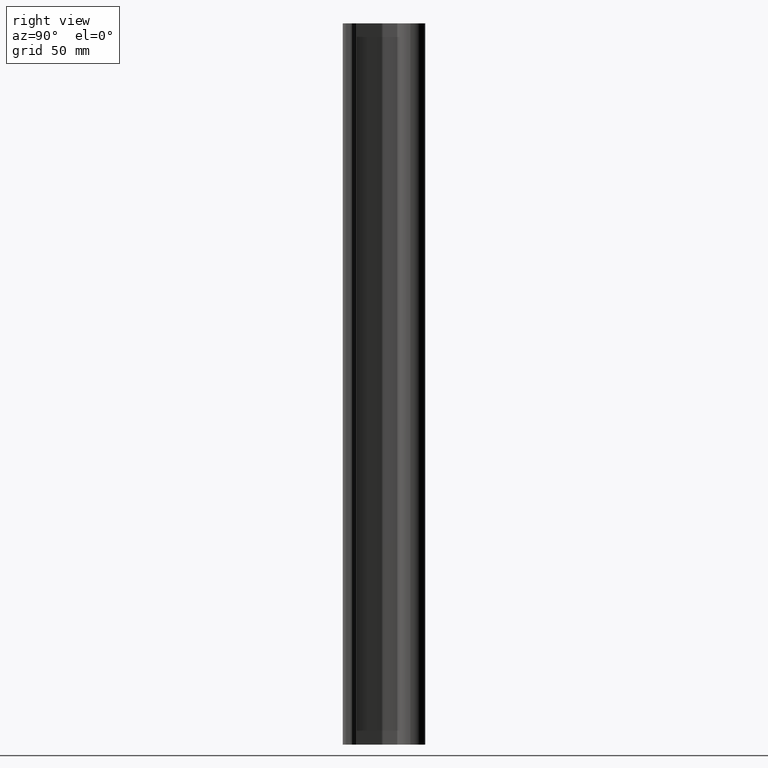
[diagram: clean part render]
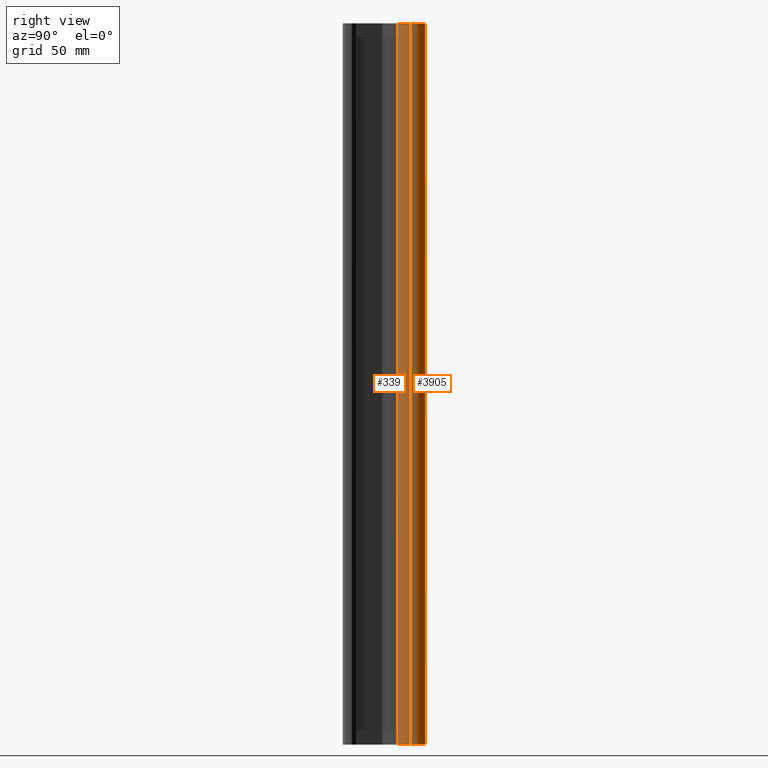
[diagram: same view with one multi-face feature highlighted, each face labeled with its STEP entity id]
A machine part, right view. The highlighted faces form ONE feature: a constant-radius fillet chain: 2 tangent blend faces with common blend radius 6.35 mm. The faces share edges in the B-rep.
Their STEP definitions:
[1] entity #3905 (Cylinder):
#411 = EDGE_CURVE ( 'NONE', #3947, #7577, #4960, .T. ) ;
#538 = CIRCLE ( 'NONE', #1554, 0.2500000000000001110 ) ;
#642 = ORIENTED_EDGE ( 'NONE', *, *, #411, .T. ) ;
#686 = CIRCLE ( 'NONE', #5574, 0.2500000000000001110 ) ;
#812 = VECTOR ( 'NONE', #7142, 39.37007874015748143 ) ;
#1169 = CARTESIAN_POINT ( 'NONE',  ( 0.2500000000000001110, 1.125000000000000222, -11.99999999999999822 ) ) ;
#1548 = EDGE_LOOP ( 'NONE', ( #2937, #642, #6297, #6998 ) ) ;
#1554 = AXIS2_PLACEMENT_3D ( 'NONE', #4876, #2490, #7236 ) ;
#1662 = AXIS2_PLACEMENT_3D ( 'NONE', #1917, #2980, #1884 ) ;
#1884 = DIRECTION ( 'NONE',  ( 1.000000000000000000, 0.000000000000000000, 0.000000000000000000 ) ) ;
#1917 = CARTESIAN_POINT ( 'NONE',  ( 0.000000000000000000, 1.125000000000000222, -11.99999999999999822 ) ) ;
#2040 = CARTESIAN_POINT ( 'NONE',  ( -0.2500000000000001110, 1.125000000000000222, -11.99999999999999822 ) ) ;
#2490 = DIRECTION ( 'NONE',  ( 0.000000000000000000, 0.000000000000000000, 1.000000000000000000 ) ) ;
#2882 = CARTESIAN_POINT ( 'NONE',  ( 0.2500000000000001110, 1.125000000000000222, -11.99999999999999822 ) ) ;
#2937 = ORIENTED_EDGE ( 'NONE', *, *, #4316, .T. ) ;
#2980 = DIRECTION ( 'NONE',  ( 0.000000000000000000, 0.000000000000000000, 1.000000000000000000 ) ) ;
#3166 = CARTESIAN_POINT ( 'NONE',  ( -0.2500000000000001110, 1.125000000000000222, -11.99999999999999822 ) ) ;
#3409 = CYLINDRICAL_SURFACE ( 'NONE', #1662, 0.2500000000000001110 ) ;
#3491 = FACE_OUTER_BOUND ( 'NONE', #1548, .T. ) ;
#3534 = EDGE_CURVE ( 'NONE', #3554, #7577, #686, .T. ) ;
#3544 = CARTESIAN_POINT ( 'NONE',  ( -0.2500000000000001110, 1.125000000000000222, 0.000000000000000000 ) ) ;
#3554 = VERTEX_POINT ( 'NONE', #4944 ) ;
#3905 = ADVANCED_FACE ( 'NONE', ( #3491 ), #3409, .T. ) ;
#3947 = VERTEX_POINT ( 'NONE', #2040 ) ;
#4037 = DIRECTION ( 'NONE',  ( 0.000000000000000000, 0.000000000000000000, 1.000000000000000000 ) ) ;
#4275 = VERTEX_POINT ( 'NONE', #2882 ) ;
#4316 = EDGE_CURVE ( 'NONE', #4275, #3947, #538, .T. ) ;
#4590 = VECTOR ( 'NONE', #4806, 39.37007874015748143 ) ;
#4641 = CARTESIAN_POINT ( 'NONE',  ( 0.000000000000000000, 1.125000000000000222, 0.000000000000000000 ) ) ;
#4806 = DIRECTION ( 'NONE',  ( 0.000000000000000000, 0.000000000000000000, 1.000000000000000000 ) ) ;
#4876 = CARTESIAN_POINT ( 'NONE',  ( 0.000000000000000000, 1.125000000000000222, -11.99999999999999822 ) ) ;
#4882 = EDGE_CURVE ( 'NONE', #4275, #3554, #7605, .T. ) ;
#4944 = CARTESIAN_POINT ( 'NONE',  ( 0.2500000000000001110, 1.125000000000000222, 0.000000000000000000 ) ) ;
#4960 = LINE ( 'NONE', #3166, #4590 ) ;
#5574 = AXIS2_PLACEMENT_3D ( 'NONE', #4641, #4037, #6423 ) ;
#6297 = ORIENTED_EDGE ( 'NONE', *, *, #3534, .F. ) ;
#6423 = DIRECTION ( 'NONE',  ( 1.000000000000000000, 0.000000000000000000, 0.000000000000000000 ) ) ;
#6998 = ORIENTED_EDGE ( 'NONE', *, *, #4882, .F. ) ;
#7142 = DIRECTION ( 'NONE',  ( 0.000000000000000000, 0.000000000000000000, 1.000000000000000000 ) ) ;
#7236 = DIRECTION ( 'NONE',  ( 1.000000000000000000, 0.000000000000000000, 0.000000000000000000 ) ) ;
#7577 = VERTEX_POINT ( 'NONE', #3544 ) ;
#7605 = LINE ( 'NONE', #1169, #812 ) ;
[2] entity #339 (Cylinder):
#2 = CARTESIAN_POINT ( 'NONE',  ( -0.07800240562820986989, 0.8874802645617220209, -1.994912855319884493 ) ) ;
#93 = B_SPLINE_CURVE_WITH_KNOTS ( 'NONE', 3,
 ( #2788, #7035, #5769, #2278, #4659, #5152, #2194, #4583, #472, #3401, #2312, #6379, #6993, #1584, #1019, #1056, #3436, #986, #5810, #1656, #425, #2855, #4695, #5234, #4057, #6448, #4174, #5500, #6777, #1398 ),
 .UNSPECIFIED., .F., .F.,
 ( 4, 2, 2, 2, 2, 2, 2, 2, 2, 2, 2, 2, 2, 2, 4 ),
 ( 7.965605694664002201E-18, 0.0003895807297420045019, 0.0007791614594840008722, 0.001168742189225997459, 0.001558322918967993721, 0.002337484378451929867, 0.002727065108193936320, 0.003116645837935943641, 0.003506226567677950094, 0.003895807297419957415, 0.004674968756903969888, 0.005064549486646006266, 0.005454130216388042643, 0.005843710946130079020, 0.006233291675872114530 ),
 .UNSPECIFIED. ) ;
#120 = CARTESIAN_POINT ( 'NONE',  ( -0.04762844379137524953, 0.8795413277969731380, -2.061979185233456136 ) ) ;
#223 = ORIENTED_EDGE ( 'NONE', *, *, #7689, .T. ) ;
#289 = CARTESIAN_POINT ( 'NONE',  ( 0.07749688441172671027, 0.8873125097882689216, -10.01022446488824613 ) ) ;
#334 = CARTESIAN_POINT ( 'NONE',  ( 0.05155376896670634673, 0.8803454926763309984, -9.941245252950563938 ) ) ;
#339 = ADVANCED_FACE ( 'NONE', ( #7031, #505, #2309, #2929 ), #1623, .T. ) ;
#363 = B_SPLINE_CURVE_WITH_KNOTS ( 'NONE', 3,
 ( #7523, #2155, #4535, #4571, #6364, #6945, #2659, #6318, #3354, #3394, #534, #1085, #7713, #2221, #4762, #2890, #2922, #2269, #7061, #3424, #7167, #3512, #1043, #1646, #457, #1737, #4167, #5291, #2391, #5883 ),
 .UNSPECIFIED., .F., .F.,
 ( 4, 2, 2, 2, 2, 2, 2, 2, 2, 2, 2, 2, 2, 2, 4 ),
 ( 9.346427983603432115E-18, 0.0003895807297418959732, 0.0007791614594837826223, 0.001168742189225668946, 0.001558322918967555270, 0.002337484378451445879, 0.002727065108193467511, 0.003116645837935489143, 0.003506226567677510342, 0.003895807297419531974, 0.004674968756903726159, 0.005064549486645823252, 0.005454130216387922080, 0.005843710946130019172, 0.006233291675872117132 ),
 .UNSPECIFIED. ) ;
#365 = CARTESIAN_POINT ( 'NONE',  ( 0.07800005346680394247, 0.8874794921292504801, -2.005139616885248888 ) ) ;
#367 = ORIENTED_EDGE ( 'NONE', *, *, #4882, .T. ) ;
#397 = CARTESIAN_POINT ( 'NONE',  ( 0.07749688441172668252, 0.8873125097882689216, -2.010224464888246132 ) ) ;
#407 = CARTESIAN_POINT ( 'NONE',  ( 0.03471035892563541225, 0.8773759459724902454, -10.07003710488676163 ) ) ;
#411 = EDGE_CURVE ( 'NONE', #3947, #7577, #4960, .T. ) ;
#425 = CARTESIAN_POINT ( 'NONE',  ( -0.06232975070472959733, 0.8827823061085767753, -5.952016090841690144 ) ) ;
#457 = CARTESIAN_POINT ( 'NONE',  ( -0.03463712429092666301, 0.8773658347640002075, -9.929927362662187562 ) ) ;
#472 = CARTESIAN_POINT ( 'NONE',  ( -0.05160429883667163459, 0.8803565653948270953, -6.058707218946969952 ) ) ;
#483 = CARTESIAN_POINT ( 'NONE',  ( 0.06235218895622875179, 0.8827879426489954051, -1.952043247457424080 ) ) ;
#490 = CARTESIAN_POINT ( 'NONE',  ( 0.02529603958555006610, 0.8762378816398044279, -6.073960228900073588 ) ) ;
#505 = FACE_BOUND ( 'NONE', #2439, .T. ) ;
#514 = VERTEX_POINT ( 'NONE', #7712 ) ;
#517 = CARTESIAN_POINT ( 'NONE',  ( 0.02054169543680450447, 0.8756652858451183796, -1.924067077359322031 ) ) ;
#534 = CARTESIAN_POINT ( 'NONE',  ( -0.06811565724640089581, 0.8844239444435320063, -10.03933565764928382 ) ) ;
#565 = CARTESIAN_POINT ( 'NONE',  ( 0.02031614091366462649, 0.8757762236181687587, -6.075481140110469802 ) ) ;
#582 = DIRECTION ( 'NONE',  ( 1.000000000000000000, 0.000000000000000000, 0.000000000000000000 ) ) ;
#663 = DIRECTION ( 'NONE',  ( 1.000000000000000000, 0.000000000000000000, 0.000000000000000000 ) ) ;
#690 = CARTESIAN_POINT ( 'NONE',  ( -0.02029898634861083268, 0.8757749623111573678, -2.075485279794390792 ) ) ;
#812 = VECTOR ( 'NONE', #7142, 39.37007874015748143 ) ;
#854 = CARTESIAN_POINT ( 'NONE',  ( -3.789845740549149170E-16, 0.8750000000000001110, -10.07800000000000118 ) ) ;
#886 = CARTESIAN_POINT ( 'NONE',  ( 0.07549072539660250936, 0.8866677519181025424, -10.02028440669258558 ) ) ;
#905 = VERTEX_POINT ( 'NONE', #2581 ) ;
#917 = CARTESIAN_POINT ( 'NONE',  ( 0.02031614091366380423, 0.8757762236181686477, -10.07548114011046891 ) ) ;
#950 = CARTESIAN_POINT ( 'NONE',  ( 0.07549072539660242609, 0.8866677519181028755, -2.020284406692587353 ) ) ;
#986 = CARTESIAN_POINT ( 'NONE',  ( -0.07547898097189705002, 0.8866640281602997664, -5.979675374726825865 ) ) ;
#1000 = CARTESIAN_POINT ( 'NONE',  ( 0.07748070542580053066, 0.8873072381692586053, -9.989668034478798475 ) ) ;
#1019 = CARTESIAN_POINT ( 'NONE',  ( -0.07799757705483373327, 0.8874786788938041626, -6.005160649025024000 ) ) ;
#1043 = CARTESIAN_POINT ( 'NONE',  ( -0.04763339262048741501, 0.8795425248909997107, -9.938025862120726472 ) ) ;
#1056 = CARTESIAN_POINT ( 'NONE',  ( -0.07800240562820985601, 0.8874802645617221319, -5.994912855319885381 ) ) ;
#1085 = CARTESIAN_POINT ( 'NONE',  ( -0.07396476811180419109, 0.8861834210205001838, -10.02527790061238022 ) ) ;
#1106 = ORIENTED_EDGE ( 'NONE', *, *, #3876, .T. ) ;
#1148 = CARTESIAN_POINT ( 'NONE',  ( -0.05160429883667128070, 0.8803565653948266512, -2.058707218946969952 ) ) ;
#1169 = CARTESIAN_POINT ( 'NONE',  ( 0.2500000000000001110, 1.125000000000000222, -11.99999999999999822 ) ) ;
#1190 = CARTESIAN_POINT ( 'NONE',  ( -0.06232975070473011081, 0.8827823061085769973, -1.952016090841690144 ) ) ;
#1191 = CARTESIAN_POINT ( 'NONE',  ( 0.06231953888075507375, 0.8827811517732780944, -6.047984401630650098 ) ) ;
#1227 = B_SPLINE_CURVE_WITH_KNOTS ( 'NONE', 3,
 ( #6837, #5055, #517, #2288, #1634, #1596, #7110, #483, #5311, #7700, #1666, #4028, #4064, #365, #397, #950, #2867, #2830, #4109, #5279, #1762, #6416, #5159, #6343, #7669, #3379, #4667, #7574 ),
 .UNSPECIFIED., .F., .F.,
 ( 4, 2, 2, 2, 2, 2, 2, 2, 2, 2, 2, 2, 2, 4 ),
 ( 0.006233291675872123204, 0.007012246077378775887, 0.007401723278132102228, 0.007791200478885428569, 0.008570154880392068242, 0.008959632081145396318, 0.009349109281898724394, 0.009738586482652054205, 0.01012806368340538228, 0.01090701808491203843, 0.01129649528566537345, 0.01168597248641870673, 0.01207544968717204348, 0.01246492688792537676 ),
 .UNSPECIFIED. ) ;
#1236 = CARTESIAN_POINT ( 'NONE',  ( -0.07799757705483373327, 0.8874786788938041626, -2.005160649025025332 ) ) ;
#1368 = DIRECTION ( 'NONE',  ( 0.000000000000000000, 0.000000000000000000, 1.000000000000000000 ) ) ;
#1374 = DIRECTION ( 'NONE',  ( 0.000000000000000000, 0.000000000000000000, 1.000000000000000000 ) ) ;
#1398 = CARTESIAN_POINT ( 'NONE',  ( 2.213917706696656308E-15, 0.8750000000000001110, -5.921999999999999709 ) ) ;
#1525 = CARTESIAN_POINT ( 'NONE',  ( 0.03921498086539857569, 0.8780576707971254891, -9.932383816771762852 ) ) ;
#1555 = EDGE_CURVE ( 'NONE', #7577, #3554, #1996, .T. ) ;
#1563 = CARTESIAN_POINT ( 'NONE',  ( 2.213917706696159326E-15, 0.8750000000000001110, -9.922000000000000597 ) ) ;
#1584 = CARTESIAN_POINT ( 'NONE',  ( -0.07749518699012490630, 0.8873119349522807786, -6.010243777974426216 ) ) ;
#1596 = CARTESIAN_POINT ( 'NONE',  ( 0.04764718445361500188, 0.8795451681264805366, -1.938036230164141616 ) ) ;
#1601 = DIRECTION ( 'NONE',  ( 1.000000000000000000, 0.000000000000000000, 0.000000000000000000 ) ) ;
#1609 = CARTESIAN_POINT ( 'NONE',  ( 0.01022138879153923832, 0.8750000000000001110, -9.922000000000000597 ) ) ;
#1623 = CYLINDRICAL_SURFACE ( 'NONE', #4209, 0.2500000000000001110 ) ;
#1634 = CARTESIAN_POINT ( 'NONE',  ( 0.03921498086539830508, 0.8780576707971252670, -1.932383816771763296 ) ) ;
#1646 = CARTESIAN_POINT ( 'NONE',  ( -0.03920491261322269633, 0.8780561055494339184, -9.932378193713816472 ) ) ;
#1656 = CARTESIAN_POINT ( 'NONE',  ( -0.06807901061803971199, 0.8844127860630973670, -5.960569573522794151 ) ) ;
#1666 = CARTESIAN_POINT ( 'NONE',  ( 0.07547573047490928333, 0.8866630057056101855, -1.979667185780374483 ) ) ;
#1737 = CARTESIAN_POINT ( 'NONE',  ( -0.02523737676779013242, 0.8762320660029588870, -9.926020410270783856 ) ) ;
#1762 = CARTESIAN_POINT ( 'NONE',  ( 0.04761907601107875920, 0.8795395870466513610, -2.061985935504922818 ) ) ;
#1770 = CARTESIAN_POINT ( 'NONE',  ( 0.06811335514283047010, 0.8844231649958608221, -6.039345509958289782 ) ) ;
#1771 = CARTESIAN_POINT ( 'NONE',  ( 0.03921498086539836059, 0.8780576707971257111, -5.932383816771763740 ) ) ;
#1805 = CARTESIAN_POINT ( 'NONE',  ( -0.07547898097189695288, 0.8866640281602998774, -1.979675374726825199 ) ) ;
#1808 = CARTESIAN_POINT ( 'NONE',  ( 0.01022138879153917934, 0.8750000000000000000, -5.921999999999999709 ) ) ;
#1846 = CARTESIAN_POINT ( 'NONE',  ( -0.03463712429092701689, 0.8773658347640002075, -1.929927362662186008 ) ) ;
#1996 = CIRCLE ( 'NONE', #5609, 0.2500000000000001110 ) ;
#2015 = CARTESIAN_POINT ( 'NONE',  ( 2.213917706696159326E-15, 0.8750000000000001110, -9.922000000000000597 ) ) ;
#2040 = CARTESIAN_POINT ( 'NONE',  ( -0.2500000000000001110, 1.125000000000000222, -11.99999999999999822 ) ) ;
#2155 = CARTESIAN_POINT ( 'NONE',  ( -0.005188565316905644105, 0.8750000000000001110, -10.07800000000000473 ) ) ;
#2194 = CARTESIAN_POINT ( 'NONE',  ( -0.03917314466049437449, 0.8780508288026275254, -6.067641354196963377 ) ) ;
#2200 = CIRCLE ( 'NONE', #6307, 0.2500000000000001110 ) ;
#2221 = CARTESIAN_POINT ( 'NONE',  ( -0.07749518699012480916, 0.8873119349522807786, -10.01024377797442533 ) ) ;
#2259 = CARTESIAN_POINT ( 'NONE',  ( 0.07547573047490928333, 0.8866630057056101855, -9.979667185780376926 ) ) ;
#2269 = CARTESIAN_POINT ( 'NONE',  ( -0.07547898097189638389, 0.8866640281602995444, -9.979675374726822312 ) ) ;
#2278 = CARTESIAN_POINT ( 'NONE',  ( -0.02029898634861100615, 0.8757749623111571458, -6.075485279794388127 ) ) ;
#2288 = CARTESIAN_POINT ( 'NONE',  ( 0.03465069891692603571, 0.8773676731561540487, -1.929933805850380102 ) ) ;
#2309 = FACE_BOUND ( 'NONE', #3792, .T. ) ;
#2312 = CARTESIAN_POINT ( 'NONE',  ( -0.06811565724639985497, 0.8844239444435314512, -6.039335657649282041 ) ) ;
#2391 = CARTESIAN_POINT ( 'NONE',  ( -0.005112052896395349183, 0.8750000000000002220, -9.922000000000002373 ) ) ;
#2416 = CARTESIAN_POINT ( 'NONE',  ( -0.07547983674979560909, 0.8866642819110250873, -2.020328139069968998 ) ) ;
#2419 = CARTESIAN_POINT ( 'NONE',  ( 0.05155376896670560427, 0.8803454926763303323, -5.941245252950559497 ) ) ;
#2439 = EDGE_LOOP ( 'NONE', ( #4001, #1106 ) ) ;
#2446 = CARTESIAN_POINT ( 'NONE',  ( -0.05153780541582207719, 0.8803421636710380138, -1.941231658580683250 ) ) ;
#2450 = ORIENTED_EDGE ( 'NONE', *, *, #7129, .T. ) ;
#2486 = CARTESIAN_POINT ( 'NONE',  ( -0.06807901061803942055, 0.8844127860630977001, -1.960569573522793485 ) ) ;
#2556 = CARTESIAN_POINT ( 'NONE',  ( -0.02527150068127923324, 0.8762352077965909203, -2.073969288191278348 ) ) ;
#2581 = CARTESIAN_POINT ( 'NONE',  ( 2.213917706723986788E-15, 0.8750000000000001110, -1.921999999999999931 ) ) ;
#2612 = EDGE_CURVE ( 'NONE', #3920, #4321, #363, .T. ) ;
#2659 = CARTESIAN_POINT ( 'NONE',  ( -0.03917314466049455490, 0.8780508288026276364, -10.06764135419696871 ) ) ;
#2663 = EDGE_CURVE ( 'NONE', #3947, #4275, #2200, .T. ) ;
#2726 = CARTESIAN_POINT ( 'NONE',  ( 0.005187186483511327210, 0.8750000000000003331, -10.07800000000000296 ) ) ;
#2773 = CARTESIAN_POINT ( 'NONE',  ( 0.07399339408268794382, 0.8861920631864398379, -9.974792446776129751 ) ) ;
#2788 = CARTESIAN_POINT ( 'NONE',  ( 3.229941627515405156E-16, 0.8750000000000001110, -6.077999999999998515 ) ) ;
#2830 = CARTESIAN_POINT ( 'NONE',  ( 0.06811335514283053949, 0.8844231649958609331, -2.039345509958290226 ) ) ;
#2855 = CARTESIAN_POINT ( 'NONE',  ( -0.05153780541582144575, 0.8803421636710382359, -5.941231658580681696 ) ) ;
#2867 = CARTESIAN_POINT ( 'NONE',  ( 0.07397325310813034072, 0.8861860169568039902, -2.025255343994362356 ) ) ;
#2882 = CARTESIAN_POINT ( 'NONE',  ( 0.2500000000000001110, 1.125000000000000222, -11.99999999999999822 ) ) ;
#2890 = CARTESIAN_POINT ( 'NONE',  ( -0.07800240562820978663, 0.8874802645617219099, -9.994912855319883604 ) ) ;
#2914 = EDGE_CURVE ( 'NONE', #6950, #905, #6269, .T. ) ;
#2918 = CARTESIAN_POINT ( 'NONE',  ( 0.06806878809041683187, 0.8844097834491140286, -5.960548605632476793 ) ) ;
#2922 = CARTESIAN_POINT ( 'NONE',  ( -0.07748692582057496725, 0.8873092589766966576, -9.989707124409200389 ) ) ;
#2929 = FACE_BOUND ( 'NONE', #5059, .T. ) ;
#3016 = ORIENTED_EDGE ( 'NONE', *, *, #4043, .T. ) ;
#3027 = CARTESIAN_POINT ( 'NONE',  ( -0.06232079077688747887, 0.8827815571590306165, -2.047982120592901190 ) ) ;
#3138 = EDGE_LOOP ( 'NONE', ( #6295, #6338, #367, #6170 ) ) ;
#3153 = CARTESIAN_POINT ( 'NONE',  ( 3.122475928760415725E-17, 0.8750000000000001110, -2.078000000000000291 ) ) ;
#3166 = CARTESIAN_POINT ( 'NONE',  ( -0.2500000000000001110, 1.125000000000000222, -11.99999999999999822 ) ) ;
#3277 = CARTESIAN_POINT ( 'NONE',  ( 0.07800005346680392859, 0.8874794921292503691, -10.00513961688524667 ) ) ;
#3354 = CARTESIAN_POINT ( 'NONE',  ( -0.05160429883667063539, 0.8803565653948267622, -10.05870721894697084 ) ) ;
#3379 = CARTESIAN_POINT ( 'NONE',  ( 0.01028783097141275880, 0.8751612583494132735, -2.077487474006472379 ) ) ;
#3386 = CARTESIAN_POINT ( 'NONE',  ( 0.03465069891692553611, 0.8773676731561541597, -9.929933805850378548 ) ) ;
#3394 = CARTESIAN_POINT ( 'NONE',  ( -0.06232079077688684049, 0.8827815571590306165, -10.04798212059290385 ) ) ;
#3401 = CARTESIAN_POINT ( 'NONE',  ( -0.06232079077688777724, 0.8827815571590308386, -6.047982120592898525 ) ) ;
#3424 = CARTESIAN_POINT ( 'NONE',  ( -0.06807901061803924014, 0.8844127860630974780, -9.960569573522793263 ) ) ;
#3436 = CARTESIAN_POINT ( 'NONE',  ( -0.07748692582057518929, 0.8873092589766966576, -5.989707124409202166 ) ) ;
#3451 = CARTESIAN_POINT ( 'NONE',  ( 0.000000000000000000, 1.125000000000000222, 0.000000000000000000 ) ) ;
#3455 = CARTESIAN_POINT ( 'NONE',  ( 3.229941627515405156E-16, 0.8750000000000001110, -6.077999999999998515 ) ) ;
#3502 = CARTESIAN_POINT ( 'NONE',  ( 0.03465069891692593163, 0.8773676731561542708, -5.929933805850380324 ) ) ;
#3512 = CARTESIAN_POINT ( 'NONE',  ( -0.05153780541582241026, 0.8803421636710380138, -9.941231658580681696 ) ) ;
#3544 = CARTESIAN_POINT ( 'NONE',  ( -0.2500000000000001110, 1.125000000000000222, 0.000000000000000000 ) ) ;
#3554 = VERTEX_POINT ( 'NONE', #4944 ) ;
#3567 = CARTESIAN_POINT ( 'NONE',  ( -0.07749518699012483691, 0.8873119349522805566, -2.010243777974426216 ) ) ;
#3568 = CARTESIAN_POINT ( 'NONE',  ( 0.05159897899607303329, 0.8803554226899560353, -6.058712028564026575 ) ) ;
#3569 = CARTESIAN_POINT ( 'NONE',  ( 0.07799994652476063828, 0.8874794570102670921, -5.994858760394039976 ) ) ;
#3616 = CARTESIAN_POINT ( 'NONE',  ( 0.06235218895622843954, 0.8827879426489954051, -5.952043247457424080 ) ) ;
#3640 = ORIENTED_EDGE ( 'NONE', *, *, #2612, .T. ) ;
#3653 = CARTESIAN_POINT ( 'NONE',  ( -0.02037021677938421343, 0.8757800773783558368, -1.924531496392252850 ) ) ;
#3672 = CARTESIAN_POINT ( 'NONE',  ( 2.213917706696656308E-15, 0.8750000000000001110, -5.921999999999999709 ) ) ;
#3792 = EDGE_LOOP ( 'NONE', ( #3016, #2450 ) ) ;
#3876 = EDGE_CURVE ( 'NONE', #905, #6950, #1227, .T. ) ;
#3899 = CARTESIAN_POINT ( 'NONE',  ( 0.05159897899607262389, 0.8803554226899557023, -10.05871202856402924 ) ) ;
#3920 = VERTEX_POINT ( 'NONE', #5015 ) ;
#3947 = VERTEX_POINT ( 'NONE', #2040 ) ;
#3966 = CARTESIAN_POINT ( 'NONE',  ( 0.02054169543680401527, 0.8756652858451183796, -9.924067077359323363 ) ) ;
#4001 = ORIENTED_EDGE ( 'NONE', *, *, #2914, .T. ) ;
#4008 = CARTESIAN_POINT ( 'NONE',  ( 0.04764718445361525861, 0.8795451681264806476, -9.938036230164138729 ) ) ;
#4028 = CARTESIAN_POINT ( 'NONE',  ( 0.07748070542580062781, 0.8873072381692589383, -1.989668034478799807 ) ) ;
#4043 = EDGE_CURVE ( 'NONE', #514, #4948, #93, .T. ) ;
#4057 = CARTESIAN_POINT ( 'NONE',  ( -0.03463712429092690587, 0.8773658347640003186, -5.929927362662186674 ) ) ;
#4064 = CARTESIAN_POINT ( 'NONE',  ( 0.07799994652476058277, 0.8874794570102669811, -1.994858760394038644 ) ) ;
#4109 = CARTESIAN_POINT ( 'NONE',  ( 0.06231953888075458109, 0.8827811517732779834, -2.047984401630651430 ) ) ;
#4161 = CARTESIAN_POINT ( 'NONE',  ( 0.07748070542580062781, 0.8873072381692589383, -5.989668034478797587 ) ) ;
#4167 = CARTESIAN_POINT ( 'NONE',  ( -0.02037021677938411282, 0.8757800773783558368, -9.924531496392255292 ) ) ;
#4174 = CARTESIAN_POINT ( 'NONE',  ( -0.02037021677938419956, 0.8757800773783561699, -5.924531496392253516 ) ) ;
#4194 = CARTESIAN_POINT ( 'NONE',  ( -0.07748692582057517542, 0.8873092589766966576, -1.989707124409202610 ) ) ;
#4209 = AXIS2_PLACEMENT_3D ( 'NONE', #7804, #1374, #663 ) ;
#4275 = VERTEX_POINT ( 'NONE', #2882 ) ;
#4321 = VERTEX_POINT ( 'NONE', #2015 ) ;
#4527 = CARTESIAN_POINT ( 'NONE',  ( 0.07799994652476065216, 0.8874794570102670921, -9.994858760394039976 ) ) ;
#4535 = CARTESIAN_POINT ( 'NONE',  ( -0.01028417825572612229, 0.8751612441285566701, -10.07748749570106739 ) ) ;
#4571 = CARTESIAN_POINT ( 'NONE',  ( -0.02029898634861109635, 0.8757749623111567017, -10.07548527979438724 ) ) ;
#4583 = CARTESIAN_POINT ( 'NONE',  ( -0.04762844379137548545, 0.8795413277969731380, -6.061979185233457024 ) ) ;
#4590 = VECTOR ( 'NONE', #4806, 39.37007874015748143 ) ;
#4640 = CARTESIAN_POINT ( 'NONE',  ( 0.01028783097141308320, 0.8751612583494134956, -6.077487474006471935 ) ) ;
#4659 = CARTESIAN_POINT ( 'NONE',  ( -0.02527150068127942406, 0.8762352077965909203, -6.073969288191277904 ) ) ;
#4667 = CARTESIAN_POINT ( 'NONE',  ( 0.005187186483511269097, 0.8750000000000001110, -2.077999999999999403 ) ) ;
#4695 = CARTESIAN_POINT ( 'NONE',  ( -0.04763339262048760236, 0.8795425248910000438, -5.938025862120729137 ) ) ;
#4712 = CARTESIAN_POINT ( 'NONE',  ( 0.07547573047490922782, 0.8866630057056101855, -5.979667185780375149 ) ) ;
#4754 = CARTESIAN_POINT ( 'NONE',  ( 2.213917706696656308E-15, 0.8750000000000001110, -5.921999999999999709 ) ) ;
#4762 = CARTESIAN_POINT ( 'NONE',  ( -0.07799757705483377490, 0.8874786788938041626, -10.00516064902502578 ) ) ;
#4789 = CARTESIAN_POINT ( 'NONE',  ( 0.07749688441172673803, 0.8873125097882689216, -6.010224464888245244 ) ) ;
#4806 = DIRECTION ( 'NONE',  ( 0.000000000000000000, 0.000000000000000000, 1.000000000000000000 ) ) ;
#4826 = CARTESIAN_POINT ( 'NONE',  ( -0.04763339262048779665, 0.8795425248910001548, -1.938025862120727361 ) ) ;
#4872 = CARTESIAN_POINT ( 'NONE',  ( -0.005112052896395405562, 0.8750000000000002220, -1.922000000000000153 ) ) ;
#4882 = EDGE_CURVE ( 'NONE', #4275, #3554, #7605, .T. ) ;
#4944 = CARTESIAN_POINT ( 'NONE',  ( 0.2500000000000001110, 1.125000000000000222, 0.000000000000000000 ) ) ;
#4948 = VERTEX_POINT ( 'NONE', #3672 ) ;
#4960 = LINE ( 'NONE', #3166, #4590 ) ;
#5015 = CARTESIAN_POINT ( 'NONE',  ( -3.789845740549149170E-16, 0.8750000000000001110, -10.07800000000000118 ) ) ;
#5055 = CARTESIAN_POINT ( 'NONE',  ( 0.01022138879153921751, 0.8750000000000003331, -1.922000000000000153 ) ) ;
#5059 = EDGE_LOOP ( 'NONE', ( #3640, #223 ) ) ;
#5064 = CARTESIAN_POINT ( 'NONE',  ( 0.06806878809041784495, 0.8844097834491142507, -9.960548605632476793 ) ) ;
#5152 = CARTESIAN_POINT ( 'NONE',  ( -0.03470459755099555843, 0.8773749578586349518, -6.070040668550720220 ) ) ;
#5159 = CARTESIAN_POINT ( 'NONE',  ( 0.03471035892563603675, 0.8773759459724903564, -2.070037104886759849 ) ) ;
#5213 = CARTESIAN_POINT ( 'NONE',  ( 0.07397325310812996602, 0.8861860169568034351, -10.02525534399436324 ) ) ;
#5234 = CARTESIAN_POINT ( 'NONE',  ( -0.03920491261322281429, 0.8780561055494338074, -5.932378193713815584 ) ) ;
#5279 = CARTESIAN_POINT ( 'NONE',  ( 0.05159897899607228389, 0.8803554226899555912, -2.058712028564029684 ) ) ;
#5283 = CARTESIAN_POINT ( 'NONE',  ( 0.03471035892563602288, 0.8773759459724902454, -6.070037104886758961 ) ) ;
#5284 = CARTESIAN_POINT ( 'NONE',  ( 0.07399339408268720830, 0.8861920631864401710, -5.974792446776127974 ) ) ;
#5291 = CARTESIAN_POINT ( 'NONE',  ( -0.01028663790876567161, 0.8751606503296343043, -9.922510479102232495 ) ) ;
#5311 = CARTESIAN_POINT ( 'NONE',  ( 0.06806878809041724820, 0.8844097834491138066, -1.960548605632476571 ) ) ;
#5365 = CARTESIAN_POINT ( 'NONE',  ( -0.01028417825572579443, 0.8751612441285568922, -2.077487495701067832 ) ) ;
#5368 = CARTESIAN_POINT ( 'NONE',  ( 0.04764718445361500188, 0.8795451681264805366, -5.938036230164141394 ) ) ;
#5405 = CARTESIAN_POINT ( 'NONE',  ( -0.07396476811180355271, 0.8861834210205001838, -2.025277900612382886 ) ) ;
#5500 = CARTESIAN_POINT ( 'NONE',  ( -0.01028663790876571324, 0.8751606503296344153, -5.922510479102231606 ) ) ;
#5522 = CARTESIAN_POINT ( 'NONE',  ( -0.03470459755099533639, 0.8773749578586351738, -2.070040668550719332 ) ) ;
#5609 = AXIS2_PLACEMENT_3D ( 'NONE', #3451, #5750, #1601 ) ;
#5750 = DIRECTION ( 'NONE',  ( 0.000000000000000000, 0.000000000000000000, 1.000000000000000000 ) ) ;
#5753 = CARTESIAN_POINT ( 'NONE',  ( 0.06235218895622909180, 0.8827879426489958492, -9.952043247457423192 ) ) ;
#5769 = CARTESIAN_POINT ( 'NONE',  ( -0.01028417825572599392, 0.8751612441285564481, -6.077487495701064724 ) ) ;
#5782 = CARTESIAN_POINT ( 'NONE',  ( 0.03917239722044438960, 0.8780507865503899279, -6.067641377104353140 ) ) ;
#5784 = CARTESIAN_POINT ( 'NONE',  ( 0.06231953888075484477, 0.8827811517732780944, -10.04798440163065187 ) ) ;
#5810 = CARTESIAN_POINT ( 'NONE',  ( -0.07399434787557189475, 0.8861923864663601158, -5.974796547117605883 ) ) ;
#5846 = B_SPLINE_CURVE_WITH_KNOTS ( 'NONE', 3,
 ( #1563, #1609, #3966, #3386, #1525, #4008, #334, #5753, #5064, #2773, #2259, #1000, #4527, #3277, #289, #886, #5213, #6235, #5784, #3899, #7632, #7055, #407, #7468, #917, #6355, #2726, #854 ),
 .UNSPECIFIED., .F., .F.,
 ( 4, 2, 2, 2, 2, 2, 2, 2, 2, 2, 2, 2, 2, 4 ),
 ( 0.006233291675872117132, 0.007012246077378821857, 0.007401723278132142994, 0.007791200478885464131, 0.008570154880391990179, 0.008959632081145328664, 0.009349109281898667148, 0.009738586482652005633, 0.01012806368340534412, 0.01090701808491202282, 0.01129649528566535957, 0.01168597248641869979, 0.01207544968717203654, 0.01246492688792537676 ),
 .UNSPECIFIED. ) ;
#5875 = CARTESIAN_POINT ( 'NONE',  ( 0.04761907601107851634, 0.8795395870466511390, -6.061985935504921486 ) ) ;
#5883 = CARTESIAN_POINT ( 'NONE',  ( 2.213917706696159326E-15, 0.8750000000000001110, -9.922000000000000597 ) ) ;
#5993 = CARTESIAN_POINT ( 'NONE',  ( -0.06811565724639992436, 0.8844239444435314512, -2.039335657649281153 ) ) ;
#5996 = CARTESIAN_POINT ( 'NONE',  ( 0.07549072539660250936, 0.8866677519181026534, -6.020284406692586465 ) ) ;
#6031 = CARTESIAN_POINT ( 'NONE',  ( -0.01028663790876569936, 0.8751606503296343043, -1.922510479102231606 ) ) ;
#6170 = ORIENTED_EDGE ( 'NONE', *, *, #1555, .F. ) ;
#6235 = CARTESIAN_POINT ( 'NONE',  ( 0.06811335514283006765, 0.8844231649958609331, -10.03934550995829156 ) ) ;
#6269 = B_SPLINE_CURVE_WITH_KNOTS ( 'NONE', 3,
 ( #3153, #7308, #5365, #690, #2556, #5522, #7791, #120, #1148, #3027, #5993, #5405, #2416, #3567, #1236, #2, #4194, #1805, #6588, #2486, #1190, #2446, #4826, #7233, #1846, #6636, #3653, #6031, #4872, #7278 ),
 .UNSPECIFIED., .F., .F.,
 ( 4, 2, 2, 2, 2, 2, 2, 2, 2, 2, 2, 2, 2, 2, 4 ),
 ( 7.700576328593837695E-19, 0.0003895807297420085676, 0.0007791614594840163763, 0.001168742189226024348, 0.001558322918968032102, 0.002337484378452031782, 0.002727065108194041704, 0.003116645837936051627, 0.003506226567678061550, 0.003895807297420071039, 0.004674968756904090451, 0.005064549486646099073, 0.005454130216388106828, 0.005843710946130115449, 0.006233291675872123204 ),
 .UNSPECIFIED. ) ;
#6295 = ORIENTED_EDGE ( 'NONE', *, *, #411, .F. ) ;
#6307 = AXIS2_PLACEMENT_3D ( 'NONE', #6601, #1368, #582 ) ;
#6318 = CARTESIAN_POINT ( 'NONE',  ( -0.04762844379137554790, 0.8795413277969735821, -10.06197918523345969 ) ) ;
#6338 = ORIENTED_EDGE ( 'NONE', *, *, #2663, .T. ) ;
#6343 = CARTESIAN_POINT ( 'NONE',  ( 0.02529603958554999324, 0.8762378816398047610, -2.073960228900075808 ) ) ;
#6355 = CARTESIAN_POINT ( 'NONE',  ( 0.01028783097141219849, 0.8751612583494137176, -10.07748747400647460 ) ) ;
#6364 = CARTESIAN_POINT ( 'NONE',  ( -0.02527150068127933039, 0.8762352077965906982, -10.07396928819128057 ) ) ;
#6379 = CARTESIAN_POINT ( 'NONE',  ( -0.07396476811180345556, 0.8861834210205001838, -6.025277900612383775 ) ) ;
#6416 = CARTESIAN_POINT ( 'NONE',  ( 0.03917239722044458389, 0.8780507865503900389, -2.067641377104351363 ) ) ;
#6448 = CARTESIAN_POINT ( 'NONE',  ( -0.02523737676779030589, 0.8762320660029592201, -5.926020410270789185 ) ) ;
#6482 = CARTESIAN_POINT ( 'NONE',  ( 3.122475928760415725E-17, 0.8750000000000001110, -2.078000000000000291 ) ) ;
#6588 = CARTESIAN_POINT ( 'NONE',  ( -0.07399434787557171433, 0.8861923864663600048, -1.974796547117605661 ) ) ;
#6601 = CARTESIAN_POINT ( 'NONE',  ( 0.000000000000000000, 1.125000000000000222, -11.99999999999999822 ) ) ;
#6636 = CARTESIAN_POINT ( 'NONE',  ( -0.02523737676779040998, 0.8762320660029592201, -1.926020410270788297 ) ) ;
#6777 = CARTESIAN_POINT ( 'NONE',  ( -0.005112052896395378673, 0.8750000000000000000, -5.922000000000000597 ) ) ;
#6837 = CARTESIAN_POINT ( 'NONE',  ( 2.213917706723986788E-15, 0.8750000000000001110, -1.921999999999999931 ) ) ;
#6945 = CARTESIAN_POINT ( 'NONE',  ( -0.03470459755099534332, 0.8773749578586351738, -10.07004066855072111 ) ) ;
#6949 = B_SPLINE_CURVE_WITH_KNOTS ( 'NONE', 3,
 ( #4754, #1808, #7161, #3502, #1771, #5368, #2419, #3616, #2918, #5284, #4712, #4161, #3569, #7795, #4789, #5996, #7484, #1770, #1191, #3568, #5875, #5782, #5283, #490, #565, #4640, #7631, #3455 ),
 .UNSPECIFIED., .F., .F.,
 ( 4, 2, 2, 2, 2, 2, 2, 2, 2, 2, 2, 2, 2, 4 ),
 ( 0.006233291675872114530, 0.007012246077378721243, 0.007401723278132025033, 0.007791200478885328823, 0.008570154880391934668, 0.008959632081145276622, 0.009349109281898618576, 0.009738586482651960530, 0.01012806368340530075, 0.01090701808491198292, 0.01129649528566532488, 0.01168597248641866509, 0.01207544968717200878, 0.01246492688792534900 ),
 .UNSPECIFIED. ) ;
#6950 = VERTEX_POINT ( 'NONE', #6482 ) ;
#6993 = CARTESIAN_POINT ( 'NONE',  ( -0.07547983674979555357, 0.8866642819110246432, -6.020328139069967222 ) ) ;
#7031 = FACE_OUTER_BOUND ( 'NONE', #3138, .T. ) ;
#7035 = CARTESIAN_POINT ( 'NONE',  ( -0.005188565316905569512, 0.8750000000000001110, -6.077999999999996739 ) ) ;
#7055 = CARTESIAN_POINT ( 'NONE',  ( 0.03917239722044452838, 0.8780507865503895948, -10.06764137710435314 ) ) ;
#7061 = CARTESIAN_POINT ( 'NONE',  ( -0.07399434787557149229, 0.8861923864663600048, -9.974796547117607659 ) ) ;
#7110 = CARTESIAN_POINT ( 'NONE',  ( 0.05155376896670595122, 0.8803454926763307764, -1.941245252950560163 ) ) ;
#7129 = EDGE_CURVE ( 'NONE', #4948, #514, #6949, .T. ) ;
#7142 = DIRECTION ( 'NONE',  ( 0.000000000000000000, 0.000000000000000000, 1.000000000000000000 ) ) ;
#7161 = CARTESIAN_POINT ( 'NONE',  ( 0.02054169543680443508, 0.8756652858451180466, -5.924067077359320699 ) ) ;
#7167 = CARTESIAN_POINT ( 'NONE',  ( -0.06232975070473037449, 0.8827823061085769973, -9.952016090841690144 ) ) ;
#7233 = CARTESIAN_POINT ( 'NONE',  ( -0.03920491261322306409, 0.8780561055494338074, -1.932378193713816028 ) ) ;
#7278 = CARTESIAN_POINT ( 'NONE',  ( 2.213917706723986788E-15, 0.8750000000000001110, -1.921999999999999931 ) ) ;
#7308 = CARTESIAN_POINT ( 'NONE',  ( -0.005188565316905607676, 0.8750000000000003331, -2.078000000000000291 ) ) ;
#7468 = CARTESIAN_POINT ( 'NONE',  ( 0.02529603958554938262, 0.8762378816398045389, -10.07396022890007536 ) ) ;
#7484 = CARTESIAN_POINT ( 'NONE',  ( 0.07397325310813032684, 0.8861860169568039902, -6.025255343994362356 ) ) ;
#7523 = CARTESIAN_POINT ( 'NONE',  ( -3.789845740549149170E-16, 0.8750000000000001110, -10.07800000000000118 ) ) ;
#7574 = CARTESIAN_POINT ( 'NONE',  ( 3.122475928760415725E-17, 0.8750000000000001110, -2.078000000000000291 ) ) ;
#7577 = VERTEX_POINT ( 'NONE', #3544 ) ;
#7605 = LINE ( 'NONE', #1169, #812 ) ;
#7631 = CARTESIAN_POINT ( 'NONE',  ( 0.005187186483511224862, 0.8750000000000000000, -6.077999999999997627 ) ) ;
#7632 = CARTESIAN_POINT ( 'NONE',  ( 0.04761907601107873839, 0.8795395870466514721, -10.06198593550492859 ) ) ;
#7669 = CARTESIAN_POINT ( 'NONE',  ( 0.02031614091366436281, 0.8757762236181688698, -2.075481140110468914 ) ) ;
#7689 = EDGE_CURVE ( 'NONE', #4321, #3920, #5846, .T. ) ;
#7700 = CARTESIAN_POINT ( 'NONE',  ( 0.07399339408268747198, 0.8861920631864402820, -1.974792446776128196 ) ) ;
#7712 = CARTESIAN_POINT ( 'NONE',  ( 3.229941627515405156E-16, 0.8750000000000001110, -6.077999999999998515 ) ) ;
#7713 = CARTESIAN_POINT ( 'NONE',  ( -0.07547983674979566460, 0.8866642819110247542, -10.02032813906996900 ) ) ;
#7791 = CARTESIAN_POINT ( 'NONE',  ( -0.03917314466049413163, 0.8780508288026274144, -2.067641354196964709 ) ) ;
#7795 = CARTESIAN_POINT ( 'NONE',  ( 0.07800005346680394247, 0.8874794921292507022, -6.005139616885249332 ) ) ;
#7804 = CARTESIAN_POINT ( 'NONE',  ( 0.000000000000000000, 1.125000000000000222, -11.99999999999999822 ) ) ;